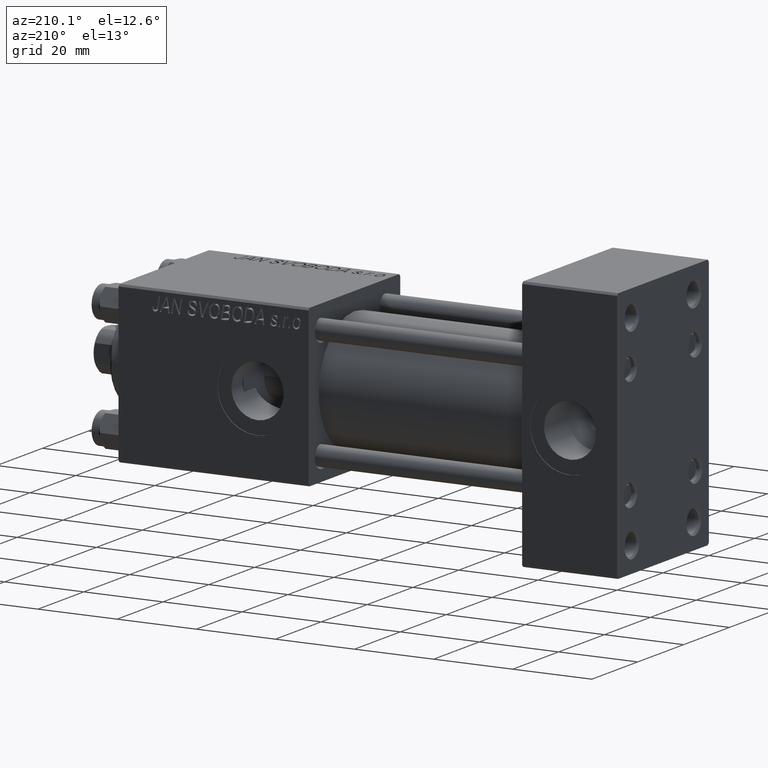
[diagram: clean part render]
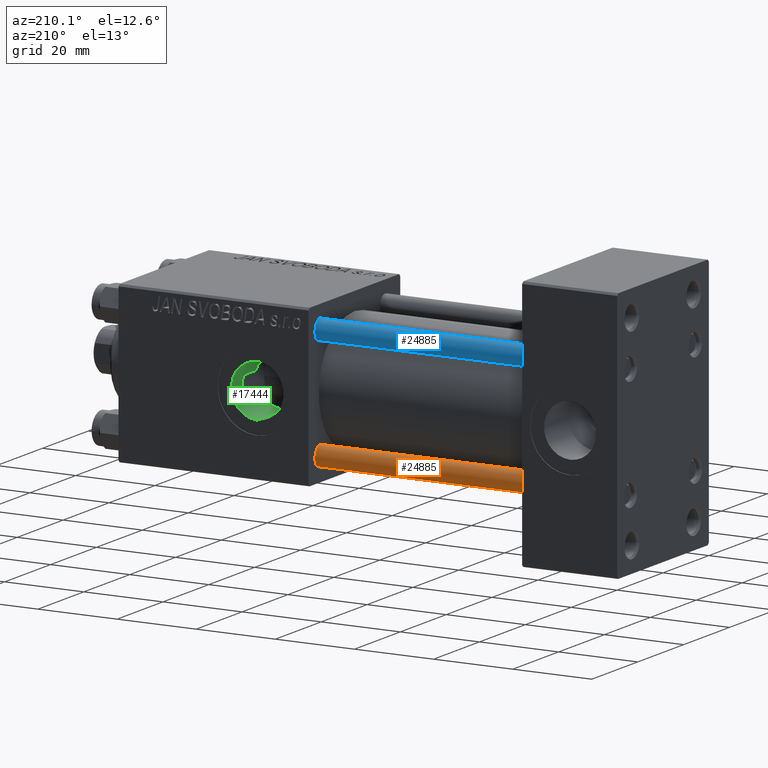
[diagram: same view with three faces highlighted in distinct colors, each labeled with its STEP entity id]
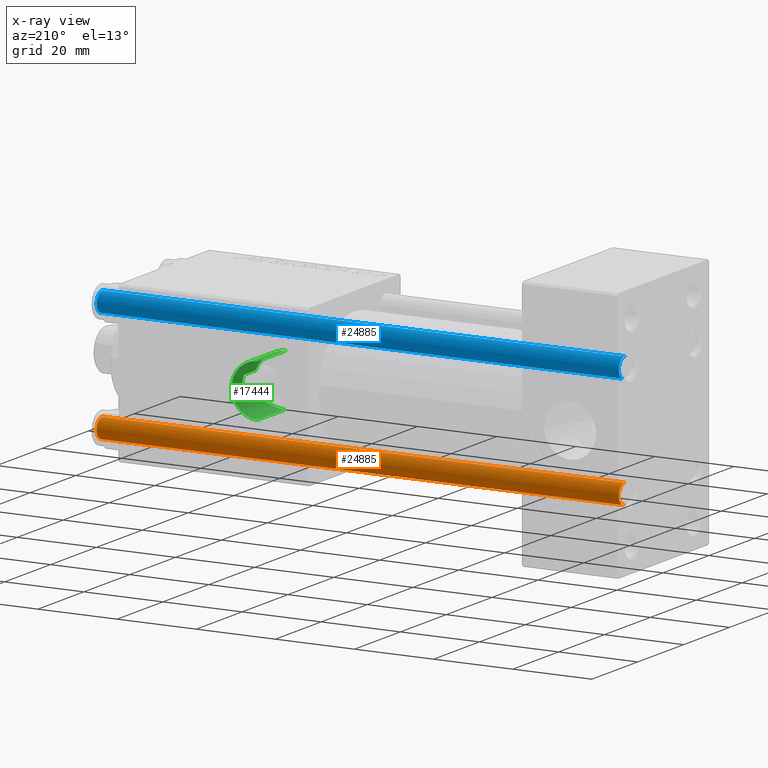
[diagram: x-ray of the same camera — body ghosted, the three highlighted faces saturated]
A machine part, auxiliary view with three faces highlighted in distinct colors.
The next image is the same camera in x-ray (body ghosted, the three faces saturated) — at least one of them is partly hidden behind the body in this view.
Their STEP definitions:

[orange] entity #24885 — the highlighted cylindrical surface (edge-blend (fillet) strip) has radius 2.5 mm, axis along (-1, 0, 0).
#1379 = DIRECTION ( 'NONE',  ( -1.000000000000000000, 0.000000000000000000, 0.000000000000000000 ) ) ;
#1523 = LINE ( 'NONE', #22136, #25015 ) ;
#5480 = EDGE_CURVE ( 'NONE', #21819, #6479, #33565, .T. ) ;
#6479 = VERTEX_POINT ( 'NONE', #19458 ) ;
#8552 = EDGE_LOOP ( 'NONE', ( #33862, #12683, #11407, #25355 ) ) ;
#9940 = CYLINDRICAL_SURFACE ( 'NONE', #14731, 2.500000000000000000 ) ;
#11407 = ORIENTED_EDGE ( 'NONE', *, *, #19240, .T. ) ;
#12683 = ORIENTED_EDGE ( 'NONE', *, *, #42195, .T. ) ;
#14170 = DIRECTION ( 'NONE',  ( 1.000000000000000000, 0.000000000000000000, 0.000000000000000000 ) ) ;
#14731 = AXIS2_PLACEMENT_3D ( 'NONE', #44280, #21305, #1379 ) ;
#14927 = VECTOR ( 'NONE', #41479, 1000.000000000000000 ) ;
#19240 = EDGE_CURVE ( 'NONE', #31706, #21819, #1523, .T. ) ;
#19458 = CARTESIAN_POINT ( 'NONE',  ( 2.500000000000000000, 3.061616997868383141E-16, 0.5000000000000281997 ) ) ;
#21305 = DIRECTION ( 'NONE',  ( -0.000000000000000000, -0.000000000000000000, -1.000000000000000000 ) ) ;
#21819 = VERTEX_POINT ( 'NONE', #25101 ) ;
#22136 = CARTESIAN_POINT ( 'NONE',  ( -2.500000000000000000, 0.000000000000000000, 133.0000000000000000 ) ) ;
#24885 = ADVANCED_FACE ( 'NONE', ( #43779 ), #9940, .T. ) ;
#24927 = CARTESIAN_POINT ( 'NONE',  ( -2.500000000000000000, 0.000000000000000000, 132.5000000000000000 ) ) ;
#25015 = VECTOR ( 'NONE', #33737, 1000.000000000000000 ) ;
#25101 = CARTESIAN_POINT ( 'NONE',  ( -2.500000000000000000, 0.000000000000000000, 0.5000000000000281997 ) ) ;
#25355 = ORIENTED_EDGE ( 'NONE', *, *, #5480, .T. ) ;
#25764 = DIRECTION ( 'NONE',  ( -0.000000000000000000, -0.000000000000000000, 1.000000000000000000 ) ) ;
#30982 = CARTESIAN_POINT ( 'NONE',  ( 0.000000000000000000, 0.000000000000000000, 132.5000000000000000 ) ) ;
#31234 = DIRECTION ( 'NONE',  ( 0.000000000000000000, 0.000000000000000000, -1.000000000000000000 ) ) ;
#31706 = VERTEX_POINT ( 'NONE', #24927 ) ;
#32567 = EDGE_CURVE ( 'NONE', #44231, #6479, #45528, .T. ) ;
#33565 = CIRCLE ( 'NONE', #38398, 2.500000000000000000 ) ;
#33737 = DIRECTION ( 'NONE',  ( -0.000000000000000000, -0.000000000000000000, -1.000000000000000000 ) ) ;
#33862 = ORIENTED_EDGE ( 'NONE', *, *, #32567, .F. ) ;
#38398 = AXIS2_PLACEMENT_3D ( 'NONE', #41417, #25764, #14170 ) ;
#38438 = CARTESIAN_POINT ( 'NONE',  ( 2.500000000000000000, 3.061616997868383141E-16, 133.0000000000000000 ) ) ;
#39403 = CIRCLE ( 'NONE', #43452, 2.500000000000000000 ) ;
#41417 = CARTESIAN_POINT ( 'NONE',  ( 0.000000000000000000, 0.000000000000000000, 0.5000000000000281997 ) ) ;
#41479 = DIRECTION ( 'NONE',  ( -0.000000000000000000, -0.000000000000000000, -1.000000000000000000 ) ) ;
#42195 = EDGE_CURVE ( 'NONE', #44231, #31706, #39403, .T. ) ;
#43452 = AXIS2_PLACEMENT_3D ( 'NONE', #30982, #31234, #46629 ) ;
#43779 = FACE_OUTER_BOUND ( 'NONE', #8552, .T. ) ;
#44231 = VERTEX_POINT ( 'NONE', #48415 ) ;
#44280 = CARTESIAN_POINT ( 'NONE',  ( 0.000000000000000000, 0.000000000000000000, 133.0000000000000000 ) ) ;
#45528 = LINE ( 'NONE', #38438, #14927 ) ;
#46629 = DIRECTION ( 'NONE',  ( 1.000000000000000000, 0.000000000000000000, 0.000000000000000000 ) ) ;
#48415 = CARTESIAN_POINT ( 'NONE',  ( 2.500000000000000000, 3.061616997868383141E-16, 132.5000000000000000 ) ) ;

[blue] entity #24885 — the highlighted cylindrical surface (edge-blend (fillet) strip) has radius 2.5 mm, axis along (1, 0, 0).
#1379 = DIRECTION ( 'NONE',  ( -1.000000000000000000, 0.000000000000000000, 0.000000000000000000 ) ) ;
#1523 = LINE ( 'NONE', #22136, #25015 ) ;
#5480 = EDGE_CURVE ( 'NONE', #21819, #6479, #33565, .T. ) ;
#6479 = VERTEX_POINT ( 'NONE', #19458 ) ;
#8552 = EDGE_LOOP ( 'NONE', ( #33862, #12683, #11407, #25355 ) ) ;
#9940 = CYLINDRICAL_SURFACE ( 'NONE', #14731, 2.500000000000000000 ) ;
#11407 = ORIENTED_EDGE ( 'NONE', *, *, #19240, .T. ) ;
#12683 = ORIENTED_EDGE ( 'NONE', *, *, #42195, .T. ) ;
#14170 = DIRECTION ( 'NONE',  ( 1.000000000000000000, 0.000000000000000000, 0.000000000000000000 ) ) ;
#14731 = AXIS2_PLACEMENT_3D ( 'NONE', #44280, #21305, #1379 ) ;
#14927 = VECTOR ( 'NONE', #41479, 1000.000000000000000 ) ;
#19240 = EDGE_CURVE ( 'NONE', #31706, #21819, #1523, .T. ) ;
#19458 = CARTESIAN_POINT ( 'NONE',  ( 2.500000000000000000, 3.061616997868383141E-16, 0.5000000000000281997 ) ) ;
#21305 = DIRECTION ( 'NONE',  ( -0.000000000000000000, -0.000000000000000000, -1.000000000000000000 ) ) ;
#21819 = VERTEX_POINT ( 'NONE', #25101 ) ;
#22136 = CARTESIAN_POINT ( 'NONE',  ( -2.500000000000000000, 0.000000000000000000, 133.0000000000000000 ) ) ;
#24885 = ADVANCED_FACE ( 'NONE', ( #43779 ), #9940, .T. ) ;
#24927 = CARTESIAN_POINT ( 'NONE',  ( -2.500000000000000000, 0.000000000000000000, 132.5000000000000000 ) ) ;
#25015 = VECTOR ( 'NONE', #33737, 1000.000000000000000 ) ;
#25101 = CARTESIAN_POINT ( 'NONE',  ( -2.500000000000000000, 0.000000000000000000, 0.5000000000000281997 ) ) ;
#25355 = ORIENTED_EDGE ( 'NONE', *, *, #5480, .T. ) ;
#25764 = DIRECTION ( 'NONE',  ( -0.000000000000000000, -0.000000000000000000, 1.000000000000000000 ) ) ;
#30982 = CARTESIAN_POINT ( 'NONE',  ( 0.000000000000000000, 0.000000000000000000, 132.5000000000000000 ) ) ;
#31234 = DIRECTION ( 'NONE',  ( 0.000000000000000000, 0.000000000000000000, -1.000000000000000000 ) ) ;
#31706 = VERTEX_POINT ( 'NONE', #24927 ) ;
#32567 = EDGE_CURVE ( 'NONE', #44231, #6479, #45528, .T. ) ;
#33565 = CIRCLE ( 'NONE', #38398, 2.500000000000000000 ) ;
#33737 = DIRECTION ( 'NONE',  ( -0.000000000000000000, -0.000000000000000000, -1.000000000000000000 ) ) ;
#33862 = ORIENTED_EDGE ( 'NONE', *, *, #32567, .F. ) ;
#38398 = AXIS2_PLACEMENT_3D ( 'NONE', #41417, #25764, #14170 ) ;
#38438 = CARTESIAN_POINT ( 'NONE',  ( 2.500000000000000000, 3.061616997868383141E-16, 133.0000000000000000 ) ) ;
#39403 = CIRCLE ( 'NONE', #43452, 2.500000000000000000 ) ;
#41417 = CARTESIAN_POINT ( 'NONE',  ( 0.000000000000000000, 0.000000000000000000, 0.5000000000000281997 ) ) ;
#41479 = DIRECTION ( 'NONE',  ( -0.000000000000000000, -0.000000000000000000, -1.000000000000000000 ) ) ;
#42195 = EDGE_CURVE ( 'NONE', #44231, #31706, #39403, .T. ) ;
#43452 = AXIS2_PLACEMENT_3D ( 'NONE', #30982, #31234, #46629 ) ;
#43779 = FACE_OUTER_BOUND ( 'NONE', #8552, .T. ) ;
#44231 = VERTEX_POINT ( 'NONE', #48415 ) ;
#44280 = CARTESIAN_POINT ( 'NONE',  ( 0.000000000000000000, 0.000000000000000000, 133.0000000000000000 ) ) ;
#45528 = LINE ( 'NONE', #38438, #14927 ) ;
#46629 = DIRECTION ( 'NONE',  ( 1.000000000000000000, 0.000000000000000000, 0.000000000000000000 ) ) ;
#48415 = CARTESIAN_POINT ( 'NONE',  ( 2.500000000000000000, 3.061616997868383141E-16, 132.5000000000000000 ) ) ;

[green] entity #17444 — the highlighted cylindrical surface (edge-blend (fillet) strip) has radius 6.58 mm, axis along (0, 1, 0).
#395 = VERTEX_POINT ( 'NONE', #27307 ) ;
#981 = VERTEX_POINT ( 'NONE', #43830 ) ;
#2385 = CARTESIAN_POINT ( 'NONE',  ( 91.00000000000000000, -18.61105048082993463, 0.000000000000000000 ) ) ;
#2643 = EDGE_CURVE ( 'NONE', #14193, #32888, #20343, .T. ) ;
#2758 = CARTESIAN_POINT ( 'NONE',  ( 94.67940812881903412, 8.377497465932931320, -5.465942830974978683 ) ) ;
#2838 = CARTESIAN_POINT ( 'NONE',  ( 91.00000000000000000, 7.530179280734286884, 6.580000000000002736 ) ) ;
#2981 = DIRECTION ( 'NONE',  ( -0.000000000000000000, 1.000000000000000000, -0.000000000000000000 ) ) ;
#2988 = ORIENTED_EDGE ( 'NONE', *, *, #2643, .F. ) ;
#3172 = ORIENTED_EDGE ( 'NONE', *, *, #39437, .F. ) ;
#4542 = B_SPLINE_CURVE_WITH_KNOTS ( 'NONE', 3,
 ( #19576, #14357, #23114, #11506, #19334, #33781, #6527, #34951 ),
 .UNSPECIFIED., .F., .F.,
 ( 4, 2, 2, 4 ),
 ( 0.000000000000000000, 0.001920194834847003878, 0.002880292252270505709, 0.003840389669694007756 ),
 .UNSPECIFIED. ) ;
#5027 = CARTESIAN_POINT ( 'NONE',  ( 91.00000000000000000, 7.530179280734286884, 6.580000000000002736 ) ) ;
#5818 = ORIENTED_EDGE ( 'NONE', *, *, #47393, .T. ) ;
#6162 = CYLINDRICAL_SURFACE ( 'NONE', #48308, 6.580000000000002736 ) ;
#6283 = CARTESIAN_POINT ( 'NONE',  ( 91.00000000000000000, 7.530179280734871305, -6.580000000000002736 ) ) ;
#6527 = CARTESIAN_POINT ( 'NONE',  ( 97.39299503868925001, 14.91867580780344049, -1.590546560891553662 ) ) ;
#9956 = DIRECTION ( 'NONE',  ( 0.000000000000000000, 0.000000000000000000, 1.000000000000000000 ) ) ;
#10157 = EDGE_CURVE ( 'NONE', #23151, #21702, #32918, .T. ) ;
#10863 = DIRECTION ( 'NONE',  ( 0.000000000000000000, -1.000000000000000000, 0.000000000000000000 ) ) ;
#10925 = CARTESIAN_POINT ( 'NONE',  ( 97.29999999999999716, 9.818024241159722720, 1.899052395275083960 ) ) ;
#11102 = VECTOR ( 'NONE', #34866, 1000.000000000000000 ) ;
#11506 = CARTESIAN_POINT ( 'NONE',  ( 97.58015205342155696, 15.00006670076156112, -0.3204703341157322249 ) ) ;
#11691 = ORIENTED_EDGE ( 'NONE', *, *, #10157, .T. ) ;
#12351 = CARTESIAN_POINT ( 'NONE',  ( 94.39192618494584508, 8.253972681303896053, 5.649073387702601146 ) ) ;
#12720 = CARTESIAN_POINT ( 'NONE',  ( 97.29999999999999716, 9.818024241159722720, -1.899052395275083960 ) ) ;
#13093 = CARTESIAN_POINT ( 'NONE',  ( 96.17892971614780606, 9.137778965377107099, 4.073426627200727346 ) ) ;
#14193 = VERTEX_POINT ( 'NONE', #12720 ) ;
#14357 = CARTESIAN_POINT ( 'NONE',  ( 97.48597345831299776, 14.95804352012491023, 1.282095859327452514 ) ) ;
#14623 = CARTESIAN_POINT ( 'NONE',  ( 93.78169333126130880, 8.022630153773368633, -5.972987039475002646 ) ) ;
#14868 = CARTESIAN_POINT ( 'NONE',  ( 91.36941793954405000, 7.530179280734292213, -6.580000000000001847 ) ) ;
#14900 = ORIENTED_EDGE ( 'NONE', *, *, #33141, .F. ) ;
#15698 = LINE ( 'NONE', #35115, #11102 ) ;
#15938 = VERTEX_POINT ( 'NONE', #10925 ) ;
#16378 = CARTESIAN_POINT ( 'NONE',  ( 97.29999999999999716, 9.818024241159722720, 1.899052395275083960 ) ) ;
#16488 = ORIENTED_EDGE ( 'NONE', *, *, #27080, .F. ) ;
#17040 = CARTESIAN_POINT ( 'NONE',  ( 91.00000000000000000, 19.79999999999999716, 0.000000000000000000 ) ) ;
#17444 = ADVANCED_FACE ( 'NONE', ( #21556 ), #6162, .F. ) ;
#19334 = CARTESIAN_POINT ( 'NONE',  ( 97.55628534059985668, 14.98955309225333110, -0.6436176373405463336 ) ) ;
#19576 = CARTESIAN_POINT ( 'NONE',  ( 97.29999999999999716, 14.87930105885353527, 1.899052395275083960 ) ) ;
#19925 = CARTESIAN_POINT ( 'NONE',  ( 95.22580703294211446, 8.631498844176368479, 5.055222175476777657 ) ) ;
#20343 = B_SPLINE_CURVE_WITH_KNOTS ( 'NONE', 3,
 ( #43410, #24226, #39617, #20438, #35815, #32045, #47441, #2758, #48942, #14623, #45661, #45412, #40853, #25965, #14868, #6283 ),
 .UNSPECIFIED., .F., .F.,
 ( 4, 2, 2, 2, 2, 2, 2, 4 ),
 ( 0.000000000000000000, 0.002175432953934298454, 0.003263149430901447681, 0.004350865907868597775, 0.005438582384835748303, 0.006526298861802896228, 0.007614015338770045889, 0.008701731815737195549 ),
 .UNSPECIFIED. ) ;
#20438 = CARTESIAN_POINT ( 'NONE',  ( 96.17962021284184004, 9.138132006252549289, -4.072983299526717005 ) ) ;
#20562 = CARTESIAN_POINT ( 'NONE',  ( 91.00000000000000000, 19.79999999999999716, -6.580000000000002736 ) ) ;
#20661 = CARTESIAN_POINT ( 'NONE',  ( 96.57449249967353921, 9.367638872427027863, 3.512712749865885886 ) ) ;
#21556 = FACE_OUTER_BOUND ( 'NONE', #25235, .T. ) ;
#21702 = VERTEX_POINT ( 'NONE', #20562 ) ;
#22839 = VERTEX_POINT ( 'NONE', #2838 ) ;
#23030 = CARTESIAN_POINT ( 'NONE',  ( 96.75223238229614253, 9.475056611244905724, 3.214650014390036503 ) ) ;
#23114 = CARTESIAN_POINT ( 'NONE',  ( 97.57969369259542702, 14.99986563316393529, 0.6502615138572128695 ) ) ;
#23151 = VERTEX_POINT ( 'NONE', #45900 ) ;
#24226 = CARTESIAN_POINT ( 'NONE',  ( 97.09078975544447587, 9.683778846330262979, -2.593095668635534867 ) ) ;
#25235 = EDGE_LOOP ( 'NONE', ( #3172, #2988, #5818, #14900, #33362, #16488, #26630, #11691 ) ) ;
#25704 = VECTOR ( 'NONE', #10863, 1000.000000000000000 ) ;
#25965 = CARTESIAN_POINT ( 'NONE',  ( 91.73177778529075965, 7.557444737900196330, -6.549135774124295928 ) ) ;
#26593 = DIRECTION ( 'NONE',  ( -0.000000000000000000, 1.000000000000000000, -0.000000000000000000 ) ) ;
#26630 = ORIENTED_EDGE ( 'NONE', *, *, #39150, .T. ) ;
#26814 = CARTESIAN_POINT ( 'NONE',  ( 92.78520720135277600, 7.737027773371178085, 6.335744570728862435 ) ) ;
#26991 = DIRECTION ( 'NONE',  ( -0.000000000000000000, 1.000000000000000000, -0.000000000000000000 ) ) ;
#26997 = CARTESIAN_POINT ( 'NONE',  ( 97.29999999999999716, -18.61105048082993463, 1.899052395275083960 ) ) ;
#27080 = EDGE_CURVE ( 'NONE', #22839, #15938, #42929, .T. ) ;
#27307 = CARTESIAN_POINT ( 'NONE',  ( 97.29999999999999716, 14.87930105885353527, -1.899052395275083960 ) ) ;
#27733 = CARTESIAN_POINT ( 'NONE',  ( 92.43711512804490837, 7.664198190640085784, 6.423653487387566585 ) ) ;
#28976 = LINE ( 'NONE', #40814, #38654 ) ;
#29686 = VECTOR ( 'NONE', #26991, 1000.000000000000000 ) ;
#30613 = CARTESIAN_POINT ( 'NONE',  ( 93.45630154324123851, 7.914149538813083140, 6.114522335035942113 ) ) ;
#32045 = CARTESIAN_POINT ( 'NONE',  ( 95.48430049440439404, 8.761966834513405189, -4.827394888999527289 ) ) ;
#32083 = AXIS2_PLACEMENT_3D ( 'NONE', #17040, #32936, #9956 ) ;
#32888 = VERTEX_POINT ( 'NONE', #34089 ) ;
#32918 = CIRCLE ( 'NONE', #32083, 6.580000000000002736 ) ;
#32936 = DIRECTION ( 'NONE',  ( 0.000000000000000000, 1.000000000000000000, 0.000000000000000000 ) ) ;
#33141 = EDGE_CURVE ( 'NONE', #981, #395, #4542, .T. ) ;
#33362 = ORIENTED_EDGE ( 'NONE', *, *, #46144, .T. ) ;
#33781 = CARTESIAN_POINT ( 'NONE',  ( 97.46269848422146254, 14.94885601429337640, -1.277751710036741262 ) ) ;
#34089 = CARTESIAN_POINT ( 'NONE',  ( 91.00000000000000000, 7.530179280734871305, -6.580000000000002736 ) ) ;
#34383 = CARTESIAN_POINT ( 'NONE',  ( 94.68052627453016612, 8.378042783064664434, 5.465019914473164597 ) ) ;
#34866 = DIRECTION ( 'NONE',  ( -0.000000000000000000, 1.000000000000000000, -0.000000000000000000 ) ) ;
#34951 = CARTESIAN_POINT ( 'NONE',  ( 97.29999999999999716, 14.87930105885353527, -1.899052395275083960 ) ) ;
#35115 = CARTESIAN_POINT ( 'NONE',  ( 91.00000000000000000, -18.61105048082993463, 6.580000000000002736 ) ) ;
#35551 = CARTESIAN_POINT ( 'NONE',  ( 92.95552312987381072, 7.778293972608186557, 6.285175371680120193 ) ) ;
#35794 = CARTESIAN_POINT ( 'NONE',  ( 91.36475722309891978, 7.530179280734287772, 6.580000000000001847 ) ) ;
#35815 = CARTESIAN_POINT ( 'NONE',  ( 95.95930675802264886, 9.014312808260335430, -4.337968282305128653 ) ) ;
#36042 = CARTESIAN_POINT ( 'NONE',  ( 97.06440534221567873, 9.667757369786093236, 2.577816894246038881 ) ) ;
#37702 = DIRECTION ( 'NONE',  ( 0.000000000000000000, 0.000000000000000000, 1.000000000000000000 ) ) ;
#38423 = CARTESIAN_POINT ( 'NONE',  ( 97.19559940545100574, 9.751032784477276394, 2.245395522666037369 ) ) ;
#38654 = VECTOR ( 'NONE', #2981, 1000.000000000000000 ) ;
#39150 = EDGE_CURVE ( 'NONE', #22839, #23151, #15698, .T. ) ;
#39437 = EDGE_CURVE ( 'NONE', #32888, #21702, #43138, .T. ) ;
#39617 = CARTESIAN_POINT ( 'NONE',  ( 96.78105900131198780, 9.487771457740816317, -3.218818238633847084 ) ) ;
#40814 = CARTESIAN_POINT ( 'NONE',  ( 97.29999999999999716, -18.61105048082993463, -1.899052395275083960 ) ) ;
#40853 = CARTESIAN_POINT ( 'NONE',  ( 92.44372686025249664, 7.659230998369539911, -6.429800219909260761 ) ) ;
#42216 = CARTESIAN_POINT ( 'NONE',  ( 93.77794836456124017, 8.021215549762905184, 5.974964122704213842 ) ) ;
#42929 = B_SPLINE_CURVE_WITH_KNOTS ( 'NONE', 3,
 ( #5027, #35794, #47675, #46931, #27733, #26814, #35551, #30613, #42216, #12351, #34383, #19925, #43388, #46005, #13093, #20661, #23030, #36042, #38423, #16378 ),
 .UNSPECIFIED., .F., .F.,
 ( 4, 2, 2, 2, 2, 2, 2, 2, 2, 4 ),
 ( 0.02991628752357815627, 0.03099865436730150567, 0.03153983778916315955, 0.03208102121102480997, 0.03316338805474815937, 0.03424575489847150184, 0.03532812174219485124, 0.03641048858591819370, 0.03749285542964154311, 0.03857522227336489251 ),
 .UNSPECIFIED. ) ;
#43138 = LINE ( 'NONE', #47170, #29686 ) ;
#43388 = CARTESIAN_POINT ( 'NONE',  ( 95.48409306527264562, 8.761841459938953136, 4.827693198723235213 ) ) ;
#43410 = CARTESIAN_POINT ( 'NONE',  ( 97.29999999999999716, 9.818024241159722720, -1.899052395275083960 ) ) ;
#43830 = CARTESIAN_POINT ( 'NONE',  ( 97.29999999999999716, 14.87930105885353527, 1.899052395275083960 ) ) ;
#45412 = CARTESIAN_POINT ( 'NONE',  ( 92.79671680564710812, 7.734895078602598062, -6.339772224986411686 ) ) ;
#45456 = LINE ( 'NONE', #26997, #25704 ) ;
#45661 = CARTESIAN_POINT ( 'NONE',  ( 93.46439935187881076, 7.916670686774623711, -6.111271469904056453 ) ) ;
#45900 = CARTESIAN_POINT ( 'NONE',  ( 91.00000000000000000, 19.79999999999999716, 6.580000000000002736 ) ) ;
#46005 = CARTESIAN_POINT ( 'NONE',  ( 95.96109302577225719, 9.015276987505449924, 4.336042922833954982 ) ) ;
#46144 = EDGE_CURVE ( 'NONE', #981, #15938, #45456, .T. ) ;
#46931 = CARTESIAN_POINT ( 'NONE',  ( 92.25920145535373251, 7.632701157856328855, 6.460912701972823413 ) ) ;
#47170 = CARTESIAN_POINT ( 'NONE',  ( 91.00000000000000000, -18.61105048082993463, -6.580000000000002736 ) ) ;
#47393 = EDGE_CURVE ( 'NONE', #14193, #395, #28976, .T. ) ;
#47441 = CARTESIAN_POINT ( 'NONE',  ( 95.22894927749121052, 8.632985092358637758, -5.052777772504250642 ) ) ;
#47675 = CARTESIAN_POINT ( 'NONE',  ( 91.72505283040922563, 7.556788752293546629, 6.549887280238499088 ) ) ;
#48308 = AXIS2_PLACEMENT_3D ( 'NONE', #2385, #26593, #37702 ) ;
#48942 = CARTESIAN_POINT ( 'NONE',  ( 94.38850089072877836, 8.252679266851465911, -5.650880787669295025 ) ) ;